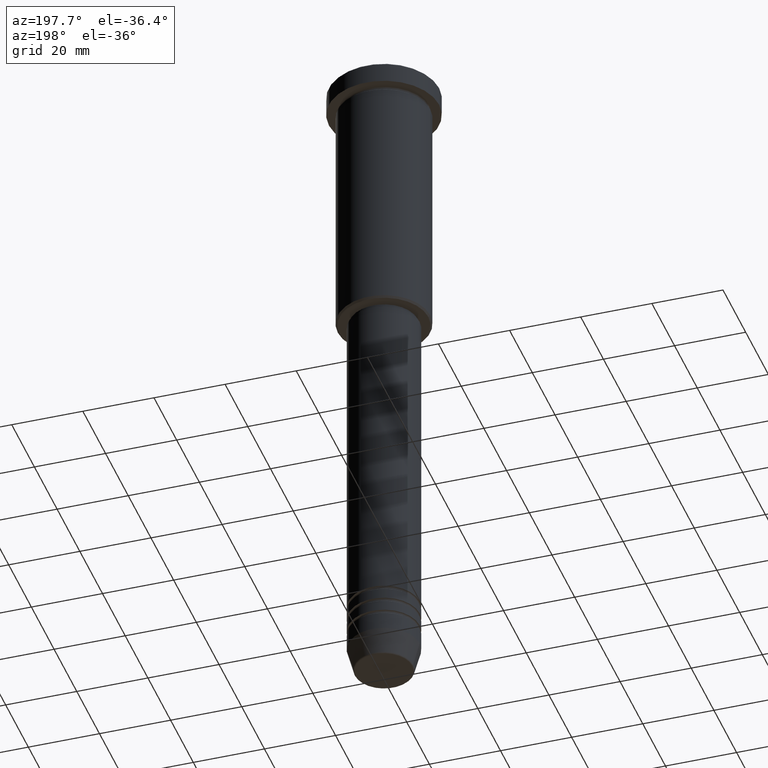
[diagram: clean part render]
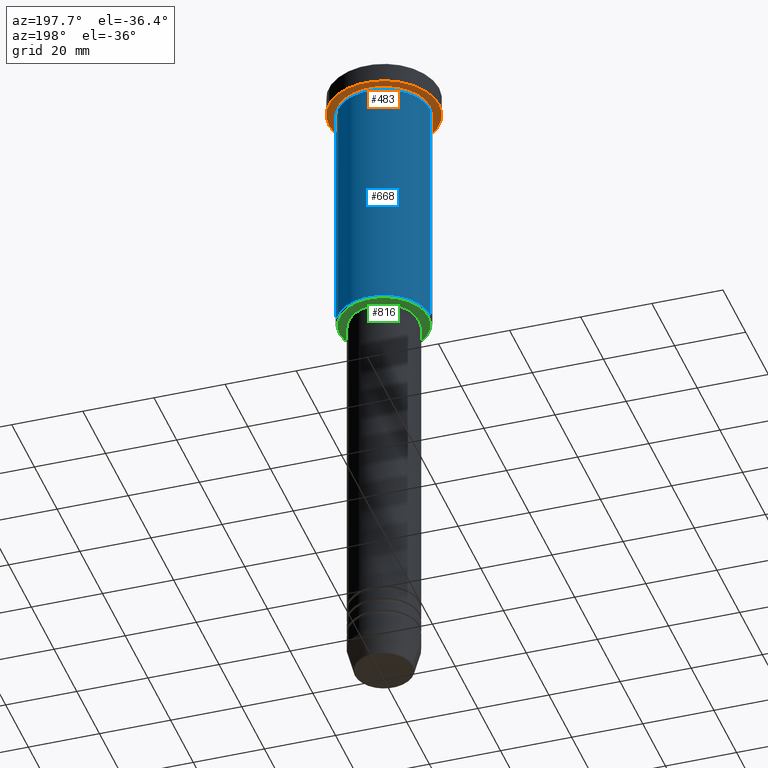
[diagram: same view with three faces highlighted in distinct colors, each labeled with its STEP entity id]
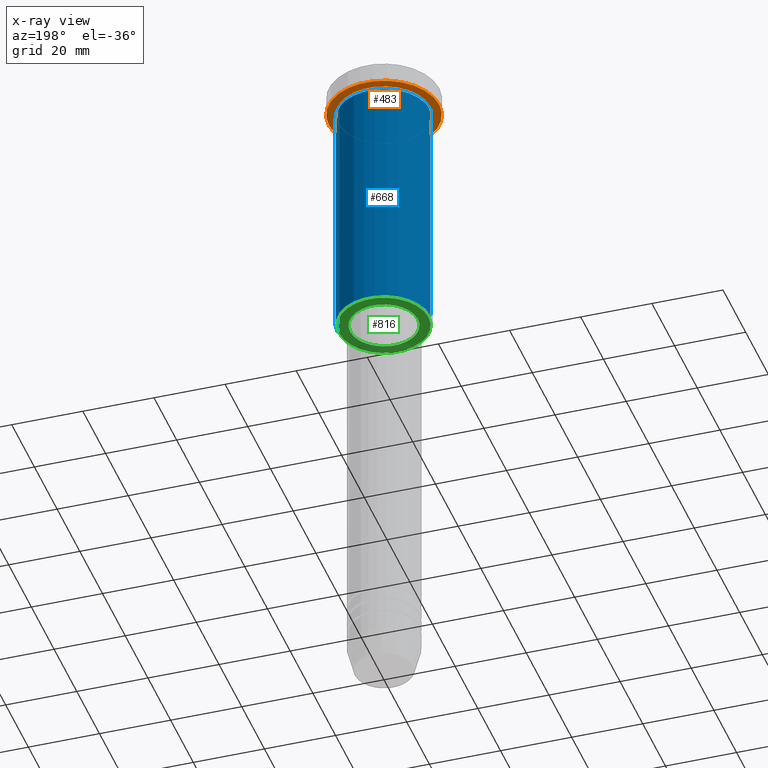
[diagram: x-ray of the same camera — body ghosted, the three highlighted faces saturated]
A machine part, auxiliary view with three faces highlighted in distinct colors.
The next image is the same camera in x-ray (body ghosted, the three faces saturated) — at least one of them is partly hidden behind the body in this view.
Their STEP definitions:

[orange] entity #483 — the highlighted planar face has unit normal (0, 0, -1).
#23 = ORIENTED_EDGE ( 'NONE', *, *, #359, .T. ) ;
#24 = CARTESIAN_POINT ( 'NONE',  ( 15.50000000000000000, 0.000000000000000000, -5.999999999999995559 ) ) ;
#53 = EDGE_CURVE ( 'NONE', #661, #132, #344, .T. ) ;
#121 = AXIS2_PLACEMENT_3D ( 'NONE', #1021, #394, #763 ) ;
#132 = VERTEX_POINT ( 'NONE', #594 ) ;
#188 = EDGE_CURVE ( 'NONE', #317, #202, #931, .T. ) ;
#199 = CARTESIAN_POINT ( 'NONE',  ( -13.00000000000000000, 0.000000000000000000, -5.999999999999994671 ) ) ;
#202 = VERTEX_POINT ( 'NONE', #199 ) ;
#225 = EDGE_CURVE ( 'NONE', #132, #661, #628, .T. ) ;
#309 = ORIENTED_EDGE ( 'NONE', *, *, #188, .T. ) ;
#312 = AXIS2_PLACEMENT_3D ( 'NONE', #716, #1092, #1179 ) ;
#317 = VERTEX_POINT ( 'NONE', #970 ) ;
#337 = CARTESIAN_POINT ( 'NONE',  ( 0.000000000000000000, 0.000000000000000000, -5.999999999999995559 ) ) ;
#344 = CIRCLE ( 'NONE', #515, 15.50000000000000000 ) ;
#359 = EDGE_CURVE ( 'NONE', #202, #317, #764, .T. ) ;
#366 = CARTESIAN_POINT ( 'NONE',  ( 0.000000000000000000, 0.000000000000000000, -5.999999999999995559 ) ) ;
#371 = DIRECTION ( 'NONE',  ( -0.000000000000000000, -0.000000000000000000, 1.000000000000000000 ) ) ;
#394 = DIRECTION ( 'NONE',  ( -0.000000000000000000, -0.000000000000000000, 1.000000000000000000 ) ) ;
#405 = DIRECTION ( 'NONE',  ( -1.000000000000000000, 0.000000000000000000, 0.000000000000000000 ) ) ;
#483 = ADVANCED_FACE ( 'NONE', ( #904, #551 ), #718, .T. ) ;
#515 = AXIS2_PLACEMENT_3D ( 'NONE', #337, #1090, #726 ) ;
#551 = FACE_OUTER_BOUND ( 'NONE', #768, .T. ) ;
#580 = DIRECTION ( 'NONE',  ( 1.000000000000000000, 0.000000000000000000, 0.000000000000000000 ) ) ;
#594 = CARTESIAN_POINT ( 'NONE',  ( -15.50000000000000000, 1.898202538678397557E-15, -5.999999999999995559 ) ) ;
#622 = DIRECTION ( 'NONE',  ( -0.000000000000000000, -0.000000000000000000, 1.000000000000000000 ) ) ;
#628 = CIRCLE ( 'NONE', #778, 15.50000000000000000 ) ;
#661 = VERTEX_POINT ( 'NONE', #24 ) ;
#687 = EDGE_LOOP ( 'NONE', ( #23, #309 ) ) ;
#712 = CARTESIAN_POINT ( 'NONE',  ( 0.000000000000000000, 0.000000000000000000, -5.999999999999995559 ) ) ;
#716 = CARTESIAN_POINT ( 'NONE',  ( 0.000000000000000000, 15.50000000000000000, -5.999999999999995559 ) ) ;
#718 = PLANE ( 'NONE',  #312 ) ;
#726 = DIRECTION ( 'NONE',  ( 1.000000000000000000, 0.000000000000000000, 0.000000000000000000 ) ) ;
#763 = DIRECTION ( 'NONE',  ( -1.000000000000000000, 0.000000000000000000, 0.000000000000000000 ) ) ;
#764 = CIRCLE ( 'NONE', #1027, 13.00000000000000000 ) ;
#768 = EDGE_LOOP ( 'NONE', ( #1166, #1002 ) ) ;
#778 = AXIS2_PLACEMENT_3D ( 'NONE', #366, #371, #580 ) ;
#904 = FACE_BOUND ( 'NONE', #687, .T. ) ;
#931 = CIRCLE ( 'NONE', #121, 13.00000000000000000 ) ;
#970 = CARTESIAN_POINT ( 'NONE',  ( 13.00000000000000000, 1.592040838891559095E-15, -5.999999999999994671 ) ) ;
#1002 = ORIENTED_EDGE ( 'NONE', *, *, #225, .F. ) ;
#1021 = CARTESIAN_POINT ( 'NONE',  ( 0.000000000000000000, 0.000000000000000000, -5.999999999999995559 ) ) ;
#1027 = AXIS2_PLACEMENT_3D ( 'NONE', #712, #622, #405 ) ;
#1090 = DIRECTION ( 'NONE',  ( -0.000000000000000000, -0.000000000000000000, 1.000000000000000000 ) ) ;
#1092 = DIRECTION ( 'NONE',  ( 0.000000000000000000, 0.000000000000000000, -1.000000000000000000 ) ) ;
#1166 = ORIENTED_EDGE ( 'NONE', *, *, #53, .F. ) ;
#1179 = DIRECTION ( 'NONE',  ( -1.000000000000000000, 0.000000000000000000, -0.000000000000000000 ) ) ;

[blue] entity #668 — the highlighted cylindrical surface (partial cylindrical patch) has radius 13 mm, axis along (-0, -0, 1).
#39 = EDGE_CURVE ( 'NONE', #435, #468, #570, .T. ) ;
#42 = AXIS2_PLACEMENT_3D ( 'NONE', #361, #559, #439 ) ;
#59 = EDGE_CURVE ( 'NONE', #435, #175, #1093, .T. ) ;
#104 = CARTESIAN_POINT ( 'NONE',  ( 0.000000000000000000, 0.000000000000000000, -6.999999999999995559 ) ) ;
#144 = VECTOR ( 'NONE', #164, 1000.000000000000000 ) ;
#149 = AXIS2_PLACEMENT_3D ( 'NONE', #1098, #770, #471 ) ;
#160 = ORIENTED_EDGE ( 'NONE', *, *, #59, .F. ) ;
#164 = DIRECTION ( 'NONE',  ( -0.000000000000000000, -0.000000000000000000, 1.000000000000000000 ) ) ;
#170 = CARTESIAN_POINT ( 'NONE',  ( -13.00000000000000178, 1.592040838891559293E-15, 0.000000000000000000 ) ) ;
#175 = VERTEX_POINT ( 'NONE', #1035 ) ;
#190 = DIRECTION ( 'NONE',  ( 1.000000000000000000, 0.000000000000000000, 0.000000000000000000 ) ) ;
#197 = EDGE_CURVE ( 'NONE', #175, #500, #306, .T. ) ;
#207 = EDGE_LOOP ( 'NONE', ( #903, #590, #544, #160 ) ) ;
#259 = LINE ( 'NONE', #170, #457 ) ;
#306 = CIRCLE ( 'NONE', #802, 13.00000000000000178 ) ;
#335 = CARTESIAN_POINT ( 'NONE',  ( -13.00000000000000178, 1.592040838891559293E-15, -75.50000000000001421 ) ) ;
#361 = CARTESIAN_POINT ( 'NONE',  ( 0.000000000000000000, 0.000000000000000000, -75.50000000000001421 ) ) ;
#393 = CYLINDRICAL_SURFACE ( 'NONE', #149, 13.00000000000000178 ) ;
#435 = VERTEX_POINT ( 'NONE', #909 ) ;
#439 = DIRECTION ( 'NONE',  ( -1.000000000000000000, 0.000000000000000000, 0.000000000000000000 ) ) ;
#457 = VECTOR ( 'NONE', #756, 1000.000000000000000 ) ;
#468 = VERTEX_POINT ( 'NONE', #335 ) ;
#471 = DIRECTION ( 'NONE',  ( 1.000000000000000000, 0.000000000000000000, 0.000000000000000000 ) ) ;
#495 = DIRECTION ( 'NONE',  ( -0.000000000000000000, -0.000000000000000000, 1.000000000000000000 ) ) ;
#500 = VERTEX_POINT ( 'NONE', #1084 ) ;
#543 = CARTESIAN_POINT ( 'NONE',  ( 13.00000000000000178, 0.000000000000000000, 0.000000000000000000 ) ) ;
#544 = ORIENTED_EDGE ( 'NONE', *, *, #197, .F. ) ;
#559 = DIRECTION ( 'NONE',  ( -0.000000000000000000, -0.000000000000000000, 1.000000000000000000 ) ) ;
#570 = CIRCLE ( 'NONE', #42, 13.00000000000000178 ) ;
#590 = ORIENTED_EDGE ( 'NONE', *, *, #1081, .T. ) ;
#668 = ADVANCED_FACE ( 'NONE', ( #1026 ), #393, .T. ) ;
#756 = DIRECTION ( 'NONE',  ( -0.000000000000000000, -0.000000000000000000, 1.000000000000000000 ) ) ;
#770 = DIRECTION ( 'NONE',  ( -0.000000000000000000, -0.000000000000000000, 1.000000000000000000 ) ) ;
#802 = AXIS2_PLACEMENT_3D ( 'NONE', #104, #495, #190 ) ;
#903 = ORIENTED_EDGE ( 'NONE', *, *, #39, .T. ) ;
#909 = CARTESIAN_POINT ( 'NONE',  ( 13.00000000000000178, 0.000000000000000000, -75.50000000000001421 ) ) ;
#1026 = FACE_OUTER_BOUND ( 'NONE', #207, .T. ) ;
#1035 = CARTESIAN_POINT ( 'NONE',  ( 13.00000000000000178, 0.000000000000000000, -6.999999999999995559 ) ) ;
#1081 = EDGE_CURVE ( 'NONE', #468, #500, #259, .T. ) ;
#1084 = CARTESIAN_POINT ( 'NONE',  ( -13.00000000000000178, 1.592040838891559293E-15, -6.999999999999995559 ) ) ;
#1093 = LINE ( 'NONE', #543, #144 ) ;
#1098 = CARTESIAN_POINT ( 'NONE',  ( 0.000000000000000000, 0.000000000000000000, 0.000000000000000000 ) ) ;

[green] entity #816 — the highlighted planar face has unit normal (0, 0, -1).
#48 = DIRECTION ( 'NONE',  ( -1.000000000000000000, 0.000000000000000000, 0.000000000000000000 ) ) ;
#62 = CARTESIAN_POINT ( 'NONE',  ( -9.500000000000001776, 1.163414459189985682E-15, -76.00000000000001421 ) ) ;
#68 = DIRECTION ( 'NONE',  ( -1.000000000000000000, 0.000000000000000000, -0.000000000000000000 ) ) ;
#142 = CARTESIAN_POINT ( 'NONE',  ( 0.000000000000000000, 0.000000000000000000, -76.00000000000001421 ) ) ;
#158 = AXIS2_PLACEMENT_3D ( 'NONE', #449, #166, #1159 ) ;
#166 = DIRECTION ( 'NONE',  ( 0.000000000000000000, 0.000000000000000000, -1.000000000000000000 ) ) ;
#178 = CIRCLE ( 'NONE', #787, 12.50000000000001066 ) ;
#223 = DIRECTION ( 'NONE',  ( -0.000000000000000000, -0.000000000000000000, 1.000000000000000000 ) ) ;
#247 = ORIENTED_EDGE ( 'NONE', *, *, #935, .T. ) ;
#263 = VERTEX_POINT ( 'NONE', #1055 ) ;
#362 = VERTEX_POINT ( 'NONE', #1067 ) ;
#408 = EDGE_LOOP ( 'NONE', ( #247, #492 ) ) ;
#428 = PLANE ( 'NONE',  #1062 ) ;
#445 = EDGE_CURVE ( 'NONE', #540, #263, #818, .T. ) ;
#449 = CARTESIAN_POINT ( 'NONE',  ( 0.000000000000000000, 0.000000000000000000, -76.00000000000001421 ) ) ;
#492 = ORIENTED_EDGE ( 'NONE', *, *, #1056, .T. ) ;
#507 = DIRECTION ( 'NONE',  ( -0.000000000000000000, -0.000000000000000000, 1.000000000000000000 ) ) ;
#540 = VERTEX_POINT ( 'NONE', #627 ) ;
#573 = ORIENTED_EDGE ( 'NONE', *, *, #445, .T. ) ;
#591 = DIRECTION ( 'NONE',  ( 1.000000000000000000, 0.000000000000000000, 0.000000000000000000 ) ) ;
#607 = DIRECTION ( 'NONE',  ( 1.000000000000000000, 0.000000000000000000, 0.000000000000000000 ) ) ;
#617 = CIRCLE ( 'NONE', #916, 9.500000000000001776 ) ;
#627 = CARTESIAN_POINT ( 'NONE',  ( -12.50000000000001066, 1.561424668912876097E-15, -76.00000000000001421 ) ) ;
#648 = FACE_BOUND ( 'NONE', #408, .T. ) ;
#697 = CARTESIAN_POINT ( 'NONE',  ( 0.000000000000000000, 0.000000000000000000, -76.00000000000001421 ) ) ;
#746 = FACE_OUTER_BOUND ( 'NONE', #953, .T. ) ;
#787 = AXIS2_PLACEMENT_3D ( 'NONE', #142, #880, #48 ) ;
#807 = CARTESIAN_POINT ( 'NONE',  ( 0.000000000000000000, 13.00000000000000000, -76.00000000000001421 ) ) ;
#816 = ADVANCED_FACE ( 'NONE', ( #746, #648 ), #428, .T. ) ;
#818 = CIRCLE ( 'NONE', #158, 12.50000000000001066 ) ;
#842 = DIRECTION ( 'NONE',  ( 0.000000000000000000, 0.000000000000000000, -1.000000000000000000 ) ) ;
#868 = ORIENTED_EDGE ( 'NONE', *, *, #1068, .T. ) ;
#880 = DIRECTION ( 'NONE',  ( 0.000000000000000000, 0.000000000000000000, -1.000000000000000000 ) ) ;
#916 = AXIS2_PLACEMENT_3D ( 'NONE', #697, #223, #607 ) ;
#935 = EDGE_CURVE ( 'NONE', #362, #1014, #939, .T. ) ;
#939 = CIRCLE ( 'NONE', #1083, 9.500000000000001776 ) ;
#953 = EDGE_LOOP ( 'NONE', ( #868, #573 ) ) ;
#1014 = VERTEX_POINT ( 'NONE', #62 ) ;
#1051 = CARTESIAN_POINT ( 'NONE',  ( 0.000000000000000000, 0.000000000000000000, -76.00000000000001421 ) ) ;
#1055 = CARTESIAN_POINT ( 'NONE',  ( 12.50000000000001066, 0.000000000000000000, -76.00000000000001421 ) ) ;
#1056 = EDGE_CURVE ( 'NONE', #1014, #362, #617, .T. ) ;
#1062 = AXIS2_PLACEMENT_3D ( 'NONE', #807, #842, #68 ) ;
#1067 = CARTESIAN_POINT ( 'NONE',  ( 9.500000000000001776, 0.000000000000000000, -76.00000000000001421 ) ) ;
#1068 = EDGE_CURVE ( 'NONE', #263, #540, #178, .T. ) ;
#1083 = AXIS2_PLACEMENT_3D ( 'NONE', #1051, #507, #591 ) ;
#1159 = DIRECTION ( 'NONE',  ( -1.000000000000000000, 0.000000000000000000, 0.000000000000000000 ) ) ;